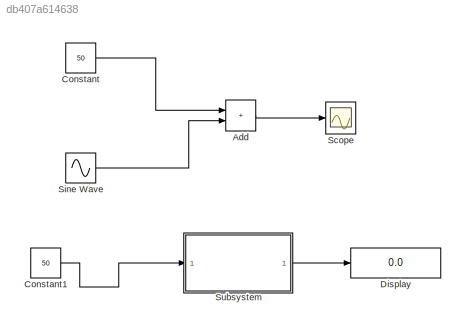
MODEL slx_db407a614638
KIND model
CONFIG AbsTol = auto
CONFIG EnableMultiTasking = off
CONFIG FixedStep = auto
CONFIG MaxStep = auto
CONFIG MinStep = auto
CONFIG RelTol = 1e-3
CONFIG SampleTimeConstraint = Unconstrained
CONFIG SolverName = VariableStepAuto
CONFIG StartTime = 0.0
CONFIG StopTime = 20
BLOCK [Sum] Add
  IconShape = rectangular
BLOCK [Constant] Constant
  Value = 50
BLOCK [Constant] Constant1
  Value = 50
BLOCK [Display] Display
  Decimation = 1
BLOCK [Scope] Scope
  Floating = off
  NumInputPorts = 1
  ScopeSpecificationString = Simulink.scopes.TimeScopeBlockCfg('CurrentConfiguration', extmgr.ConfigurationSet(extmgr.Configuration('Core','General UI',true),extmgr.Configuration('Core','Source UI',true),extmgr.Configuration('Sources','WiredSimulink',true),extmgr.Configuration('Visuals','Time Domain',true,'SerializedDisplays',{struct('MinYLimReal','42.08248','MaxYLimReal','58.01998','YLabelReal','','MinYLimMag','42.08248','Ma...<+1402ch>
BLOCK [Sin] Sine Wave
  Amplitude = 5
  Frequency = 2*pi/24
  SampleTime = 0
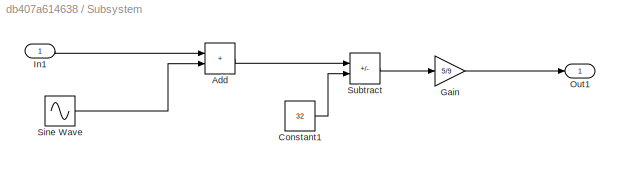
BLOCK [SubSystem] Subsystem
BLOCK [Sum] Subsystem/Add
  IconShape = rectangular
BLOCK [Constant] Subsystem/Constant1
  Value = 32
BLOCK [Gain] Subsystem/Gain
  Gain = 5/9
BLOCK [Inport] Subsystem/In1
BLOCK [Outport] Subsystem/Out1
BLOCK [Sin] Subsystem/Sine Wave
  Amplitude = 5
  Frequency = 2*pi/24
  SampleTime = 0
BLOCK [Sum] Subsystem/Subtract
  IconShape = rectangular
  Inputs = +-
LINE Add:1 -> Scope:1
LINE Constant1:1 -> Subsystem:1
LINE Constant:1 -> Add:1
LINE Sine Wave:1 -> Add:2
LINE Subsystem/Add:1 -> Subsystem/Subtract:1
LINE Subsystem/Constant1:1 -> Subsystem/Subtract:2
LINE Subsystem/Gain:1 -> Subsystem/Out1:1
LINE Subsystem/In1:1 -> Subsystem/Add:1
LINE Subsystem/Sine Wave:1 -> Subsystem/Add:2
LINE Subsystem/Subtract:1 -> Subsystem/Gain:1
LINE Subsystem:1 -> Display:1
